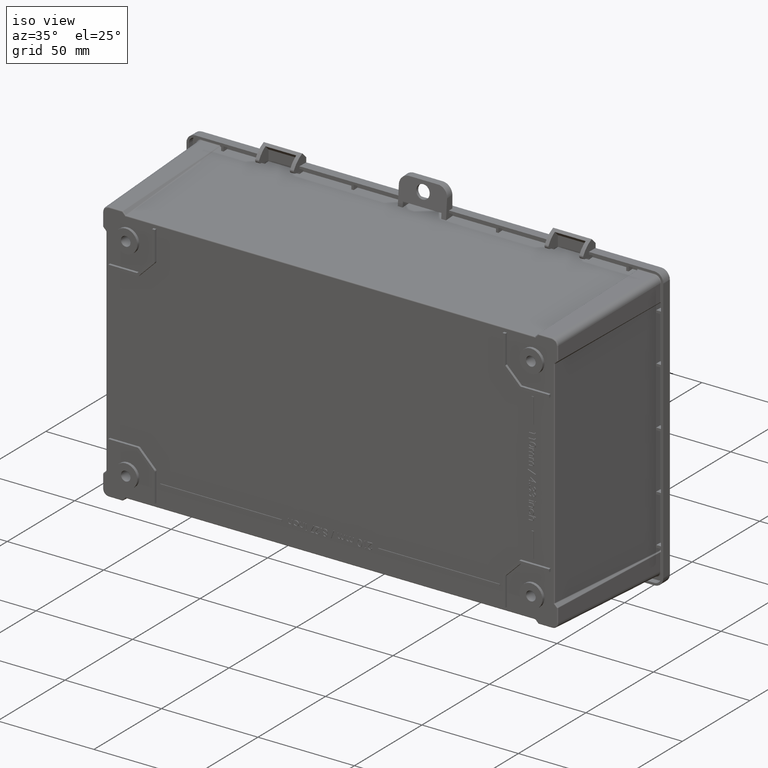
[diagram: clean part render]
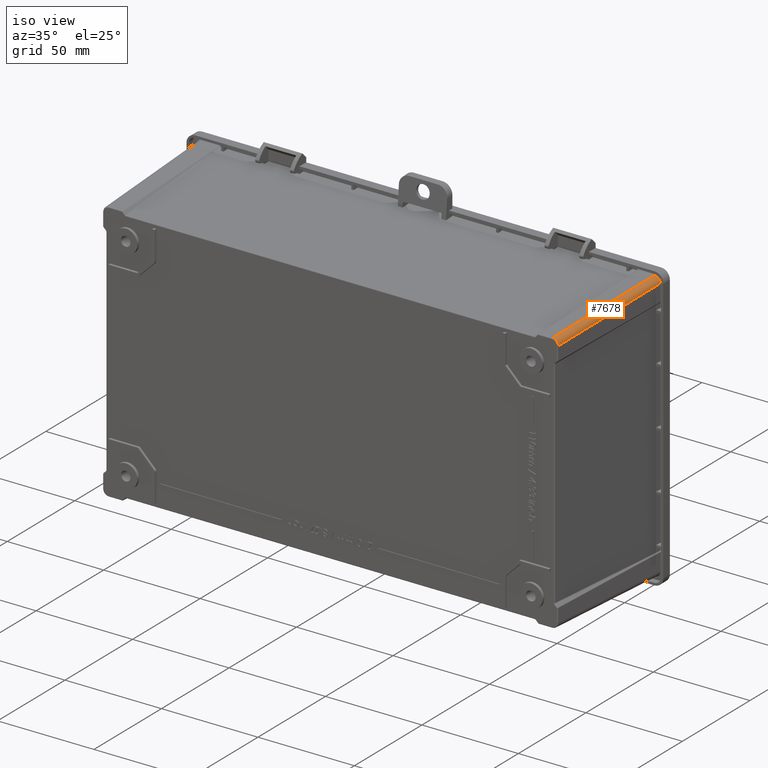
[diagram: same view with one face highlighted and labeled with its STEP entity id]
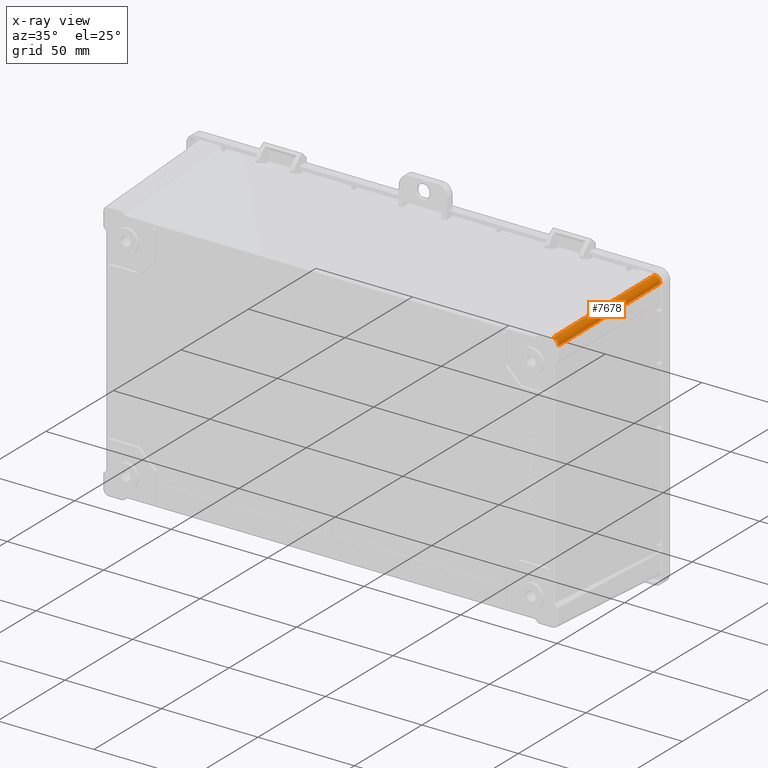
[diagram: x-ray of the same camera — body ghosted, the highlighted face saturated]
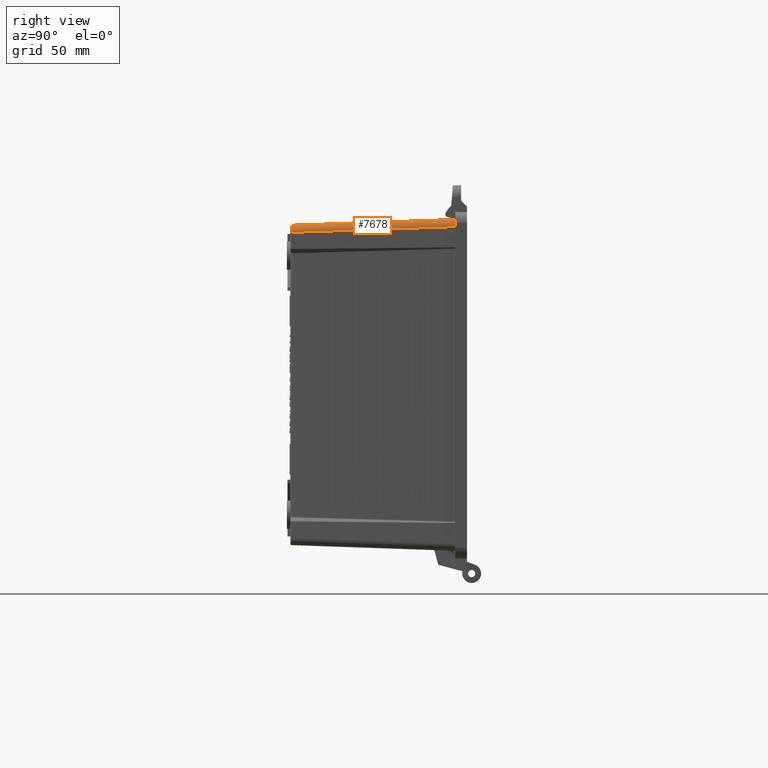
[diagram: same view with one face highlighted and labeled with its STEP entity id]
A machine part, iso view. The second image highlights one B-rep face of the part: STEP entity #7678.
The next image is the same camera in x-ray: the body ghosted, the highlighted face saturated — about 0% of this face is hidden behind the body in this view.
A second angle (right view) of the same face is appended — the face is thin or edge-on in the first view.
In plain terms, the highlighted cylindrical surface (edge-blend (fillet) strip) has radius 3 mm, axis along (0.0349, 0.9988, 0.0349).
Its self-contained STEP definition (entity closure, byte-faithful):
#534 = VERTEX_POINT ( 'NONE', #47503 ) ;
#536 = VERTEX_POINT ( 'NONE', #47504 ) ;
#557 = VERTEX_POINT ( 'NONE', #47519 ) ;
#559 = VERTEX_POINT ( 'NONE', #47520 ) ;
#3308 = VERTEX_POINT ( 'NONE', #19278 ) ;
#3309 = VERTEX_POINT ( 'NONE', #19279 ) ;
#6513 = ORIENTED_EDGE ( 'NONE', *, *, #7380, .T. ) ;
#6514 = ORIENTED_EDGE ( 'NONE', *, *, #7377, .F. ) ;
#6515 = ORIENTED_EDGE ( 'NONE', *, *, #46023, .T. ) ;
#6516 = ORIENTED_EDGE ( 'NONE', *, *, #46039, .T. ) ;
#6517 = ORIENTED_EDGE ( 'NONE', *, *, #7382, .F. ) ;
#6518 = ORIENTED_EDGE ( 'NONE', *, *, #7383, .T. ) ;
#7377 = EDGE_CURVE ( 'NONE', #536, #3308, #33423, .T. ) ;
#7380 = EDGE_CURVE ( 'NONE', #534, #3309, #23538, .T. ) ;
#7382 = EDGE_CURVE ( 'NONE', #559, #3309, #33424, .T. ) ;
#7383 = EDGE_CURVE ( 'NONE', #557, #3308, #23540, .T. ) ;
#7678 = ADVANCED_FACE ( 'NONE', ( #33524 ), #33515, .T. ) ;
#18107 =( BOUNDED_CURVE ( )  B_SPLINE_CURVE ( 3, ( #41334, #41335, #41336, #41337 ),
 .UNSPECIFIED., .F., .T. ) 
 B_SPLINE_CURVE_WITH_KNOTS ( ( 4, 4 ),
 ( 5.498396131367742100, 6.283185307179586200 ),
 .UNSPECIFIED. ) 
 CURVE ( )  GEOMETRIC_REPRESENTATION_ITEM ( )  RATIONAL_B_SPLINE_CURVE ( ( 1.000000000000000000, 0.9493306762732168800, 0.9493306762732168800, 1.000000000000000000 ) ) 
 REPRESENTATION_ITEM ( '' )  );
#18146 =( BOUNDED_CURVE ( )  B_SPLINE_CURVE ( 3, ( #41390, #41391, #41392, #41393 ),
 .UNSPECIFIED., .F., .T. ) 
 B_SPLINE_CURVE_WITH_KNOTS ( ( 4, 4 ),
 ( 5.498396131367748300, 6.283185307179586200 ),
 .UNSPECIFIED. ) 
 CURVE ( )  GEOMETRIC_REPRESENTATION_ITEM ( )  RATIONAL_B_SPLINE_CURVE ( ( 1.000000000000000000, 0.9493306762732176600, 0.9493306762732176600, 1.000000000000000000 ) ) 
 REPRESENTATION_ITEM ( '' )  );
#19278 = CARTESIAN_POINT ( 'NONE',  ( 117.4208754753137500, -2.682550251648749400, 70.41904795637106000 ) ) ;
#19279 = CARTESIAN_POINT ( 'NONE',  ( 117.9105179895838500, -74.51744974835125400, 64.91234550852655600 ) ) ;
#23538 =( BOUNDED_CURVE ( )  B_SPLINE_CURVE ( 3, ( #36505, #36506, #36507, #36508 ),
 .UNSPECIFIED., .F., .T. ) 
 B_SPLINE_CURVE_WITH_KNOTS ( ( 4, 4 ),
 ( 0.0000000000000000000, 0.7847891758118394900 ),
 .UNSPECIFIED. ) 
 CURVE ( )  GEOMETRIC_REPRESENTATION_ITEM ( )  RATIONAL_B_SPLINE_CURVE ( ( 1.000000000000000000, 0.9493306762732174300, 0.9493306762732174300, 1.000000000000000000 ) ) 
 REPRESENTATION_ITEM ( '' )  );
#23540 =( BOUNDED_CURVE ( )  B_SPLINE_CURVE ( 3, ( #36511, #36512, #36513, #36514 ),
 .UNSPECIFIED., .F., .T. ) 
 B_SPLINE_CURVE_WITH_KNOTS ( ( 4, 4 ),
 ( 0.0000000000000000000, 0.7847891758118468200 ),
 .UNSPECIFIED. ) 
 CURVE ( )  GEOMETRIC_REPRESENTATION_ITEM ( )  RATIONAL_B_SPLINE_CURVE ( ( 1.000000000000000000, 0.9493306762732165400, 0.9493306762732165400, 1.000000000000000000 ) ) 
 REPRESENTATION_ITEM ( '' )  );
#33423 = LINE ( 'NONE', #36503, #35853 ) ;
#33424 = LINE ( 'NONE', #36509, #35854 ) ;
#33515 = CYLINDRICAL_SURFACE ( 'NONE', #35964, 2.999999999999997300 ) ;
#33524 = FACE_OUTER_BOUND ( 'NONE', #47083, .T. ) ;
#35853 = VECTOR ( 'NONE', #36504, 1000.000000000000000 ) ;
#35854 = VECTOR ( 'NONE', #36510, 1000.000000000000000 ) ;
#35964 = AXIS2_PLACEMENT_3D ( 'NONE', #36828, #36829, #36830 ) ;
#36503 = CARTESIAN_POINT ( 'NONE',  ( 117.2268338470354900, -8.239175466454309300, 70.22500632809280300 ) ) ;
#36504 = DIRECTION ( 'NONE',  ( 0.03487826274237469700, 0.9987827659587182900, 0.03487826274237469000 ) ) ;
#36505 = CARTESIAN_POINT ( 'NONE',  ( 117.0323431101960500, -74.52466265610114200, 67.03234311019605200 ) ) ;
#36506 = CARTESIAN_POINT ( 'NONE',  ( 117.6020057664937900, -74.52466265610114200, 66.46268045389830100 ) ) ;
#36507 = CARTESIAN_POINT ( 'NONE',  ( 117.9103545506551600, -74.52213002690943700, 65.71829719010519000 ) ) ;
#36508 = CARTESIAN_POINT ( 'NONE',  ( 117.9105179895838500, -74.51744974835125400, 64.91234550852655600 ) ) ;
#36509 = CARTESIAN_POINT ( 'NONE',  ( 120.3466556492854200, -4.755594693087918000, 67.34848316822812800 ) ) ;
#36510 = DIRECTION ( 'NONE',  ( -0.03487826274237469000, -0.9987827659587182900, -0.03487826274237469700 ) ) ;
#36511 = CARTESIAN_POINT ( 'NONE',  ( 119.5413768375610700, -2.675337343898861200, 69.54137683756107400 ) ) ;
#36512 = CARTESIAN_POINT ( 'NONE',  ( 118.9717141812633200, -2.675337343898861200, 70.11103949385881200 ) ) ;
#36513 = CARTESIAN_POINT ( 'NONE',  ( 118.2271540347498000, -2.677869973090551500, 70.41921139529978300 ) ) ;
#36514 = CARTESIAN_POINT ( 'NONE',  ( 117.4208754753137500, -2.682550251648749400, 70.41904795637106000 ) ) ;
#36828 = CARTESIAN_POINT ( 'NONE',  ( 117.2268338470355200, -8.134476976346809000, 67.22683384703552200 ) ) ;
#36829 = DIRECTION ( 'NONE',  ( 0.03487826274237470400, 0.9987827659587184000, 0.03487826274237470400 ) ) ;
#36830 = DIRECTION ( 'NONE',  ( 0.0000000000000000000, -0.03489949670250119100, 0.9993908270190957600 ) ) ;
#41334 = CARTESIAN_POINT ( 'NONE',  ( 114.9123455085265400, -74.51744974835125400, 67.91051798958385200 ) ) ;
#41335 = CARTESIAN_POINT ( 'NONE',  ( 115.7182971901052000, -74.52213002690943700, 67.91035455065517100 ) ) ;
#41336 = CARTESIAN_POINT ( 'NONE',  ( 116.4626804538983000, -74.52466265610114200, 67.60200576649378900 ) ) ;
#41337 = CARTESIAN_POINT ( 'NONE',  ( 117.0323431101960500, -74.52466265610114200, 67.03234311019605200 ) ) ;
#41390 = CARTESIAN_POINT ( 'NONE',  ( 120.4190479563710700, -2.682550251648749400, 67.42087547531377800 ) ) ;
#41391 = CARTESIAN_POINT ( 'NONE',  ( 120.4192113952997800, -2.677869973090550600, 68.22715403474981600 ) ) ;
#41392 = CARTESIAN_POINT ( 'NONE',  ( 120.1110394938588100, -2.675337343898861200, 68.97171418126333700 ) ) ;
#41393 = CARTESIAN_POINT ( 'NONE',  ( 119.5413768375610700, -2.675337343898861200, 69.54137683756107400 ) ) ;
#46023 = EDGE_CURVE ( 'NONE', #536, #534, #18107, .T. ) ;
#46039 = EDGE_CURVE ( 'NONE', #559, #557, #18146, .T. ) ;
#47083 = EDGE_LOOP ( 'NONE', ( #6514, #6515, #6513, #6517, #6516, #6518 ) ) ;
#47503 = CARTESIAN_POINT ( 'NONE',  ( 117.0323431101960500, -74.52466265610114200, 67.03234311019605200 ) ) ;
#47504 = CARTESIAN_POINT ( 'NONE',  ( 114.9123455085265400, -74.51744974835125400, 67.91051798958385200 ) ) ;
#47519 = CARTESIAN_POINT ( 'NONE',  ( 119.5413768375610700, -2.675337343898861200, 69.54137683756107400 ) ) ;
#47520 = CARTESIAN_POINT ( 'NONE',  ( 120.4190479563710700, -2.682550251648749400, 67.42087547531377800 ) ) ;